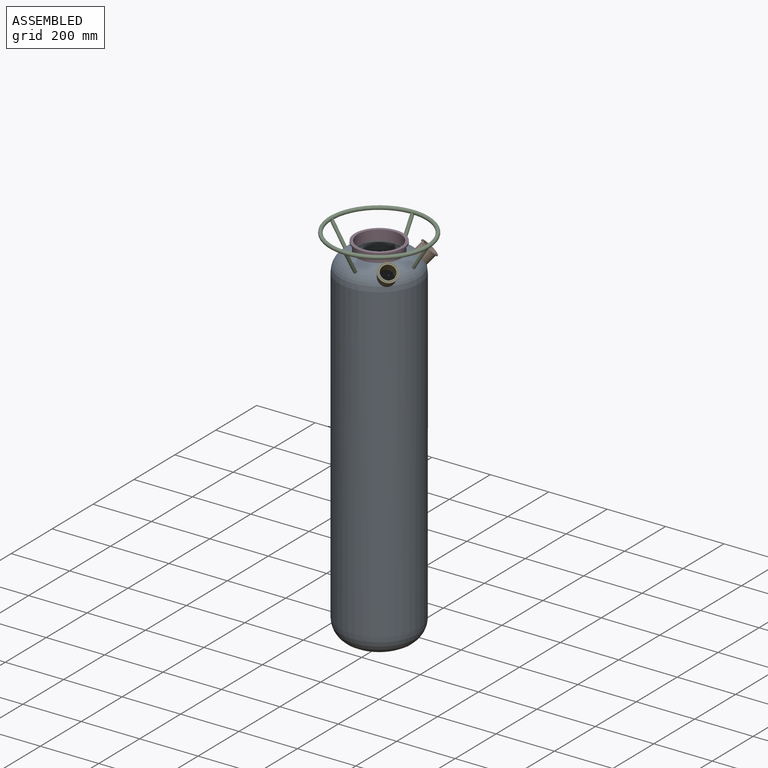
[diagram: assembled view]
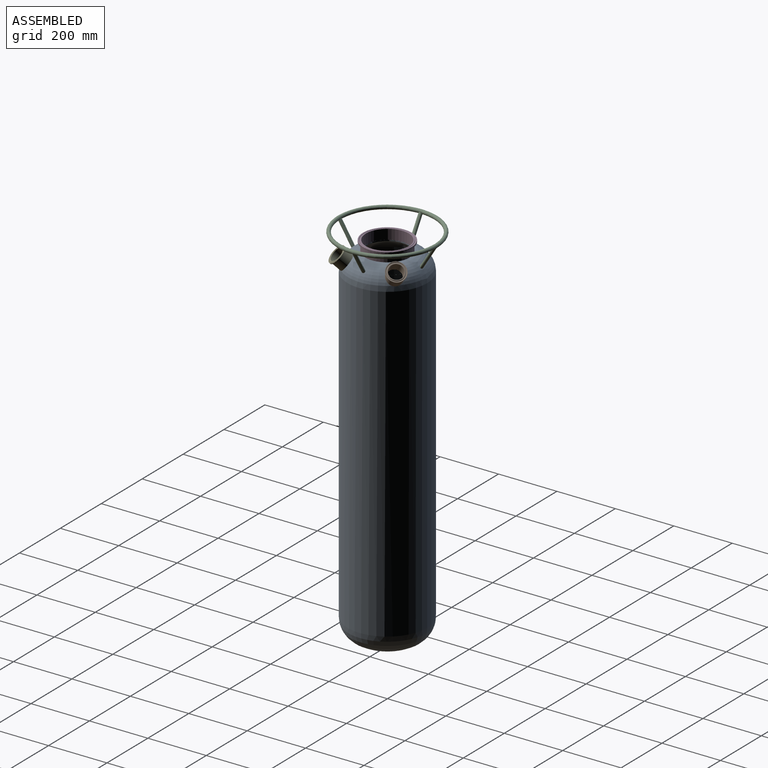
[diagram: assembled view, second angle]
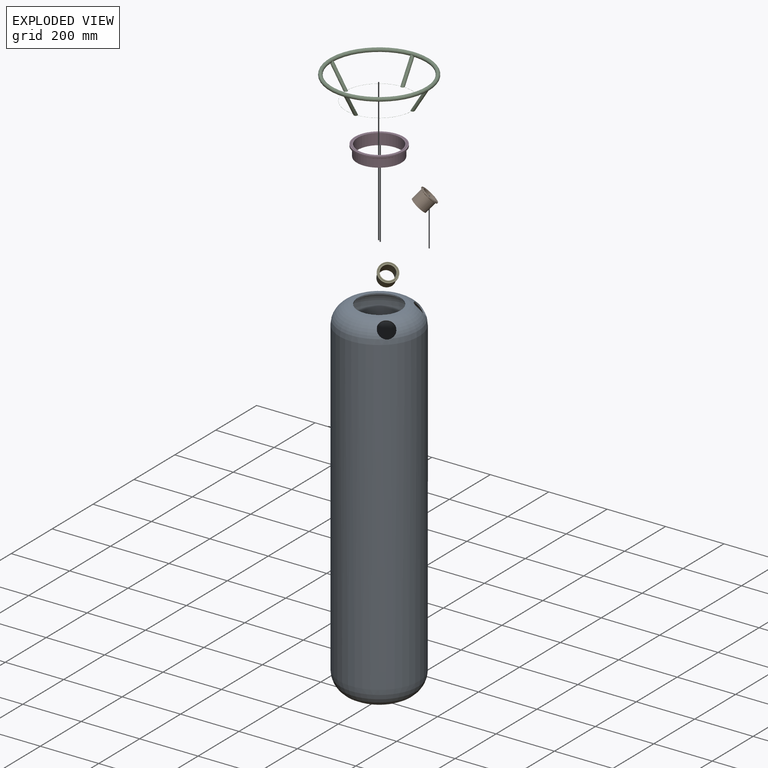
[diagram: exploded view]
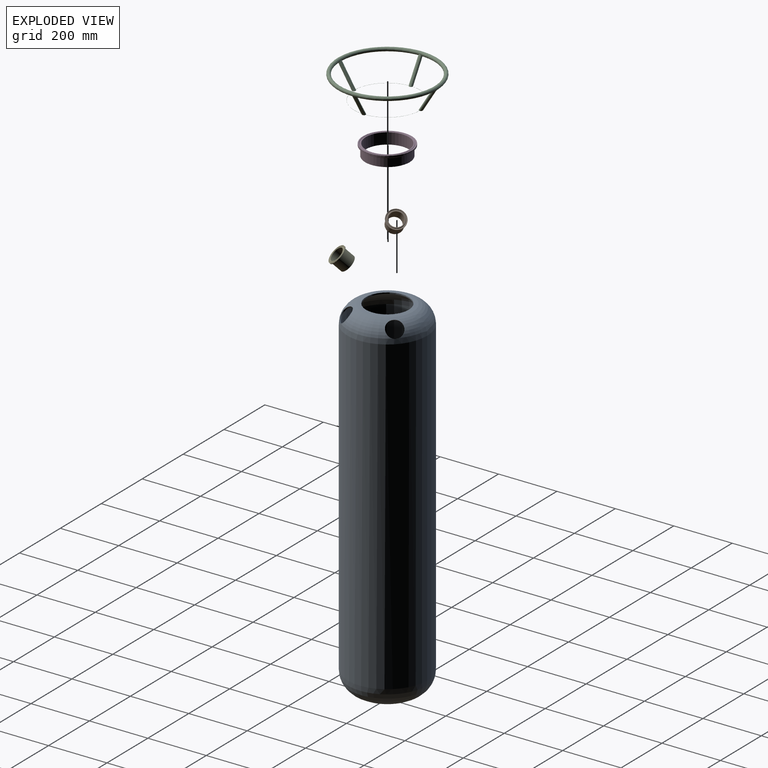
[diagram: exploded view, second angle]
ASSEMBLY  parts=5 mates=4
PART A: 11 faces, bbox 295.5x295.5x1202.6 mm
  f0: cylinder r=27.86mm len=54.3mm, axis (0.5,-0.5,-0.71), area 806.5mm2, adj f1,f2
  f1: torus R=72.73mm, axis (0,0,-1), area 59468.9mm2, adj f0,f5,f6,f10
  f2: torus R=73.03mm, axis (0,0,-1), area 65870.3mm2, adj f0,f6,f7,f10
  f3: plane 128.37x128.37mm, normal (0,0,1), area 12942.8mm2, adj f4
  f4: torus R=64.19mm, axis (0,0,-1), area 72351.3mm2, adj f3,f5
  f5: cylinder r=132.33mm len=1066.8mm, axis (0,0,-1), area 887021.8mm2, adj f1,f4
  f6: cylinder r=73.43mm len=146.86mm, axis (0,0,1), area 1935mm2, adj f1,f2
  f7: cylinder r=136.53mm len=1066.8mm, axis (0,0,-1), area 915113.7mm2, adj f2,f8
  f8: torus R=64.19mm, axis (0,0,-1), area 78705.7mm2, adj f7,f9
  f9: plane 128.37x128.37mm, normal (0,0,-1), area 12942.8mm2, adj f8
  f10: cylinder r=27.86mm len=54.3mm, axis (-0.5,-0.5,-0.71), area 806.5mm2, adj f1,f2
PART B: 12 faces, bbox 65.3x44.4x65.3 mm
  f0: plane 63.91x63.91mm, normal (0,-1,0), area 350.1mm2, adj f1,f9
  f1: torus R=30.16mm, axis (0,-1,0), area 172.1mm2, adj f0,f2
  f2: cone r=29.43mm half-angle=23deg, axis (0,-1,0), area 78.8mm2, adj f1,f3
  f3: torus R=28.17mm, axis (0,-1,0), area 494.2mm2, adj f2,f4
  f4: cone r=27.07mm half-angle=23deg, axis (0,1,0), area 72.4mm2, adj f3,f5
  f5: torus R=26.18mm, axis (0,-1,0), area 153.8mm2, adj f4,f6
  f6: plane 52.36x52.36mm, normal (0,-1,0), area 381mm2, adj f5,f7
  f7: cylinder r=23.75mm len=47.5mm, axis (0,-1,0), area 6625.2mm2, adj f6,f11
  f8: cone r=27.49mm half-angle=70deg, axis (0,-1,0), area 819mm2, adj f9,f10
  f9: cylinder r=31.95mm len=63.91mm, axis (0,-1,0), area 571.1mm2, adj f0,f8
  f10: cylinder r=27.86mm len=55.72mm, axis (0,1,0), area 7012.5mm2, adj f8,f11
  f11: plane 55.72x55.72mm, normal (0,1,0), area 666.1mm2, adj f7,f10
PART C: 21 faces, bbox 371.2x371.2x81.5 mm
  f0: plane 108.04x108.04mm, normal (0,0,1), area 42.4mm2, adj f1,f15,f18,f20
  f1: bspline ~81.28x63.12mm, area 3359.6mm2, adj f0,f2,f12,f13,f14
  f2: plane 108.04x108.04mm, normal (0,0,1), area 42.4mm2, adj f1,f3,f15,f20
  f3: bspline ~81.28x63.12mm, area 3359.6mm2, adj f2,f4,f10,f11,f14
  f4: plane 108.04x108.04mm, normal (0,0,1), area 42.4mm2, adj f3,f5,f15,f20
  f5: bspline ~81.28x63.12mm, area 3359.6mm2, adj f4,f6,f7,f8,f9
  f6: plane 108.04x108.04mm, normal (0,0,1), area 42.4mm2, adj f5,f15,f18,f20
  f7: plane 12.67x6.1mm, normal (0,0,-1), area 59.4mm2, adj f5,f15
  f8: plane 12.7x6.53mm, normal (0,0,-1), area 64.1mm2, adj f5,f20
  f9: torus R=165.1mm, axis (0,0,-1), area 121.8mm2, adj f5
  f10: plane 12.67x6.1mm, normal (0,0,-1), area 59.4mm2, adj f3,f15
  f11: plane 12.7x6.53mm, normal (0,0,-1), area 64.1mm2, adj f3,f20
  f12: plane 12.67x6.1mm, normal (0,0,-1), area 59.4mm2, adj f1,f15
  f13: plane 12.7x6.53mm, normal (0,0,-1), area 64.1mm2, adj f1,f20
  f14: torus R=165.1mm, axis (0,0,-1), area 41021mm2, adj f1,f3,f18
  f15: cylinder r=114.3mm len=228.6mm, axis (0,0,1), area 182.4mm2, adj f0,f2,f4,f6,f7,f10,f12,f16
  f16: plane 229.11x229.11mm, normal (0,0,-1), area 182.6mm2, adj f15,f20
  f17: plane 12.67x6.1mm, normal (0,0,-1), area 59.4mm2, adj f15,f18
  f18: bspline ~81.28x63.12mm, area 3359.6mm2, adj f0,f6,f14,f17,f19
  f19: plane 12.7x6.53mm, normal (0,0,-1), area 64.1mm2, adj f18,f20
  f20: cylinder r=114.55mm len=229.11mm, axis (0,0,1), area 182.8mm2, adj f0,f2,f4,f6,f8,f11,f13,f16
PART D: 13 faces, bbox 174.1x38.1x174.1 mm
  f0: cylinder r=83.44mm len=166.88mm, axis (0,-1,0), area 2929.6mm2, adj f1,f10
  f1: cone r=78.29mm half-angle=70deg, axis (0,-1,0), area 2784.5mm2, adj f0,f2
  f2: torus R=79.38mm, axis (0,-1,0), area 1875mm2, adj f1,f3
  f3: cylinder r=76.2mm len=152.4mm, axis (0,-1,0), area 13240.2mm2, adj f2,f12
  f4: cylinder r=73.43mm len=146.86mm, axis (0,-1,0), area 17578.7mm2, adj f11,f12
  f5: torus R=76.44mm, axis (0,-1,0), area 444.6mm2, adj f6,f11
  f6: cone r=77.34mm half-angle=23deg, axis (0,1,0), area 207.3mm2, adj f5,f7
  f7: torus R=78.44mm, axis (0,-1,0), area 1376mm2, adj f6,f8
  f8: cone r=79.7mm half-angle=23deg, axis (0,-1,0), area 213.6mm2, adj f7,f9
  f9: torus R=80.43mm, axis (0,-1,0), area 462.9mm2, adj f8,f10
  f10: plane 166.88x166.88mm, normal (0,-1,0), area 1551.2mm2, adj f0,f9
  f11: plane 152.89x152.89mm, normal (0,-1,0), area 1418.8mm2, adj f4,f5
  f12: plane 152.4x152.4mm, normal (0,1,0), area 1301.5mm2, adj f3,f4
PART E: same geometry as B
PLACE A rot(axis=(0,0,-1),90deg) t=(0,0,51.15)mm
PLACE B rot(axis=(-0.79,0.46,-0.41),153.4deg) t=(102.11,102.11,1182.17)mm
PLACE C rot(axis=(0,0,-1),90deg) t=(0,0,1240.18)mm
PLACE D rot(axis=(-0.58,0.58,-0.58),120deg) t=(0,0,1215.36)mm
PLACE E rot(axis=(-0.48,0.84,-0.25),133.1deg) t=(102.11,-102.11,1182.17)mm
MATE fastened A.f0 <-> B.f1  axis (-0.5,-0.5,-0.71) through (81.82,81.82,1153.47)mm
MATE fastened E.f1 <-> A.f10  axis (-0.5,0.5,-0.71) through (79.91,-79.91,1150.78)mm
MATE fastened A.f1 <-> D.f0  axis (0,0,-1) through (0,0,1177.26)mm
MATE fastened C.f9 <-> A.f1  axis (0,0,1) through (0,0,1158.9)mm
